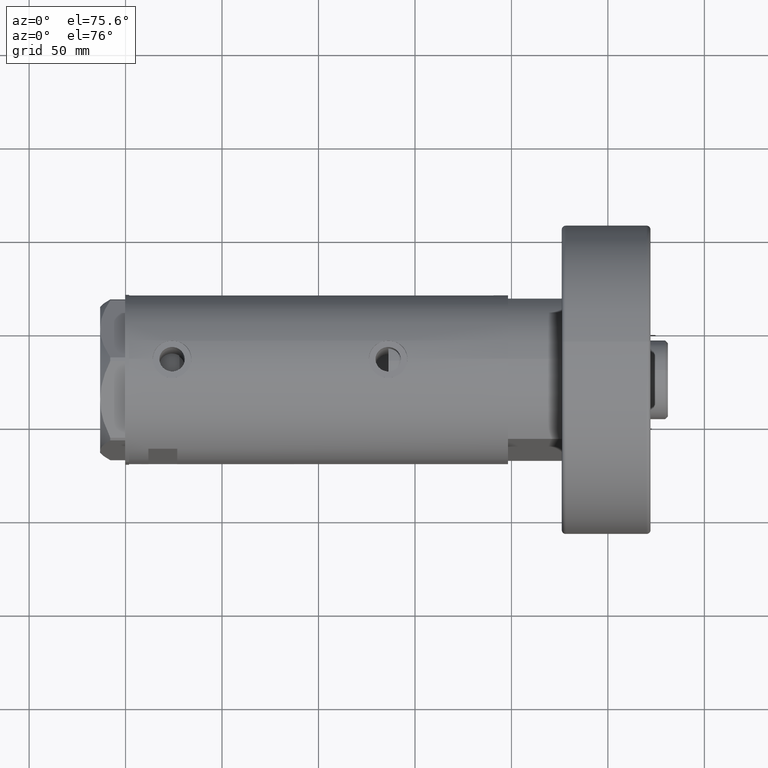
[diagram: clean part render]
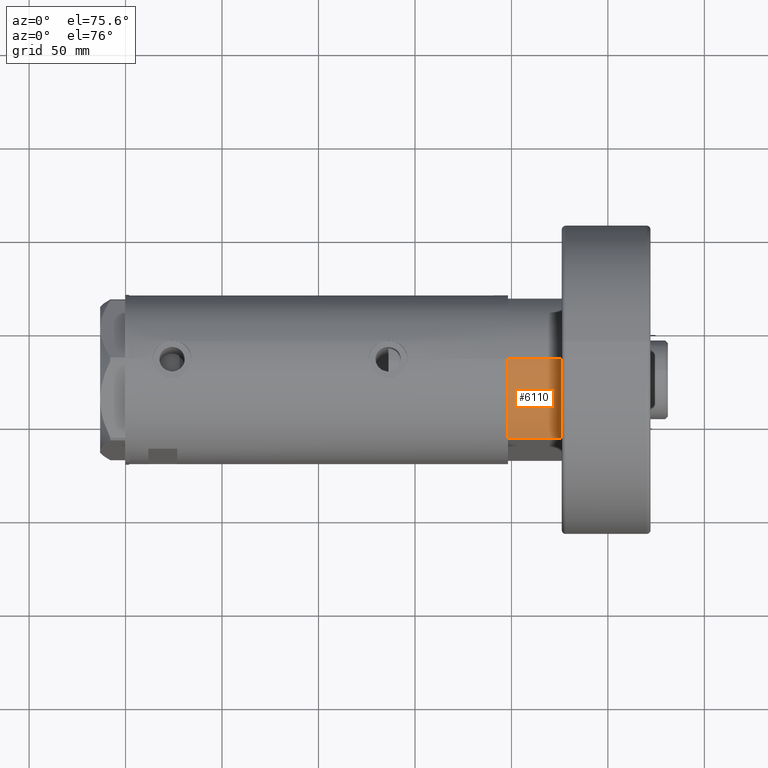
[diagram: same view with one face highlighted and labeled with its STEP entity id]
A machine part, auxiliary view. The second image highlights one B-rep face of the part: STEP entity #6110.
In plain terms, the highlighted cylindrical surface (partial cylindrical patch) has radius 44 mm, axis along (-1, -0, 0).
Its self-contained STEP definition (entity closure, byte-faithful):
#142 = VERTEX_POINT ( 'NONE', #2061 ) ;
#225 = DIRECTION ( 'NONE',  ( 1.000000000000000000, 0.000000000000000000, 0.000000000000000000 ) ) ;
#408 = CARTESIAN_POINT ( 'NONE',  ( -44.00000000000000000, 0.000000000000000000, 0.000000000000000000 ) ) ;
#1153 = DIRECTION ( 'NONE',  ( 0.000000000000000000, 0.000000000000000000, 1.000000000000000000 ) ) ;
#1330 = ORIENTED_EDGE ( 'NONE', *, *, #2038, .T. ) ;
#1471 = FACE_OUTER_BOUND ( 'NONE', #2811, .T. ) ;
#1695 = CARTESIAN_POINT ( 'NONE',  ( 0.000000000000000000, 0.000000000000000000, 0.000000000000000000 ) ) ;
#1708 = AXIS2_PLACEMENT_3D ( 'NONE', #2473, #4450, #2627 ) ;
#1977 = CARTESIAN_POINT ( 'NONE',  ( -44.00000000000000000, 0.000000000000000000, 27.89999999999999858 ) ) ;
#2026 = VECTOR ( 'NONE', #3952, 1000.000000000000000 ) ;
#2034 = LINE ( 'NONE', #2949, #2026 ) ;
#2038 = EDGE_CURVE ( 'NONE', #2656, #142, #6338, .T. ) ;
#2061 = CARTESIAN_POINT ( 'NONE',  ( -23.01629857296780557, -37.50000000000000000, 0.000000000000000000 ) ) ;
#2393 = DIRECTION ( 'NONE',  ( 1.000000000000000000, 0.000000000000000000, 0.000000000000000000 ) ) ;
#2473 = CARTESIAN_POINT ( 'NONE',  ( 0.000000000000000000, 0.000000000000000000, 27.89999999999999858 ) ) ;
#2526 = DIRECTION ( 'NONE',  ( -0.000000000000000000, -0.000000000000000000, -1.000000000000000000 ) ) ;
#2627 = DIRECTION ( 'NONE',  ( -1.000000000000000000, 0.000000000000000000, 0.000000000000000000 ) ) ;
#2656 = VERTEX_POINT ( 'NONE', #408 ) ;
#2811 = EDGE_LOOP ( 'NONE', ( #3293, #3362, #1330, #2918 ) ) ;
#2886 = CARTESIAN_POINT ( 'NONE',  ( -44.00000000000000000, 0.000000000000000000, 27.89999999999999858 ) ) ;
#2918 = ORIENTED_EDGE ( 'NONE', *, *, #5736, .T. ) ;
#2949 = CARTESIAN_POINT ( 'NONE',  ( -23.01629857296780557, -37.50000000000000000, 0.000000000000000000 ) ) ;
#3293 = ORIENTED_EDGE ( 'NONE', *, *, #3979, .F. ) ;
#3362 = ORIENTED_EDGE ( 'NONE', *, *, #5249, .T. ) ;
#3413 = CARTESIAN_POINT ( 'NONE',  ( 0.000000000000000000, 0.000000000000000000, 27.89999999999999858 ) ) ;
#3760 = AXIS2_PLACEMENT_3D ( 'NONE', #3413, #4862, #2393 ) ;
#3870 = CYLINDRICAL_SURFACE ( 'NONE', #1708, 44.00000000000000000 ) ;
#3952 = DIRECTION ( 'NONE',  ( -0.000000000000000000, -0.000000000000000000, 1.000000000000000000 ) ) ;
#3979 = EDGE_CURVE ( 'NONE', #5602, #5845, #5944, .T. ) ;
#4021 = LINE ( 'NONE', #1977, #5331 ) ;
#4450 = DIRECTION ( 'NONE',  ( -0.000000000000000000, -0.000000000000000000, -1.000000000000000000 ) ) ;
#4471 = AXIS2_PLACEMENT_3D ( 'NONE', #1695, #1153, #225 ) ;
#4862 = DIRECTION ( 'NONE',  ( 0.000000000000000000, 0.000000000000000000, 1.000000000000000000 ) ) ;
#5249 = EDGE_CURVE ( 'NONE', #5602, #2656, #4021, .T. ) ;
#5331 = VECTOR ( 'NONE', #2526, 1000.000000000000000 ) ;
#5602 = VERTEX_POINT ( 'NONE', #2886 ) ;
#5718 = CARTESIAN_POINT ( 'NONE',  ( -23.01629857296780557, -37.50000000000000000, 27.89999999999999858 ) ) ;
#5736 = EDGE_CURVE ( 'NONE', #142, #5845, #2034, .T. ) ;
#5845 = VERTEX_POINT ( 'NONE', #5718 ) ;
#5944 = CIRCLE ( 'NONE', #3760, 44.00000000000000000 ) ;
#6110 = ADVANCED_FACE ( 'NONE', ( #1471 ), #3870, .T. ) ;
#6338 = CIRCLE ( 'NONE', #4471, 44.00000000000000000 ) ;